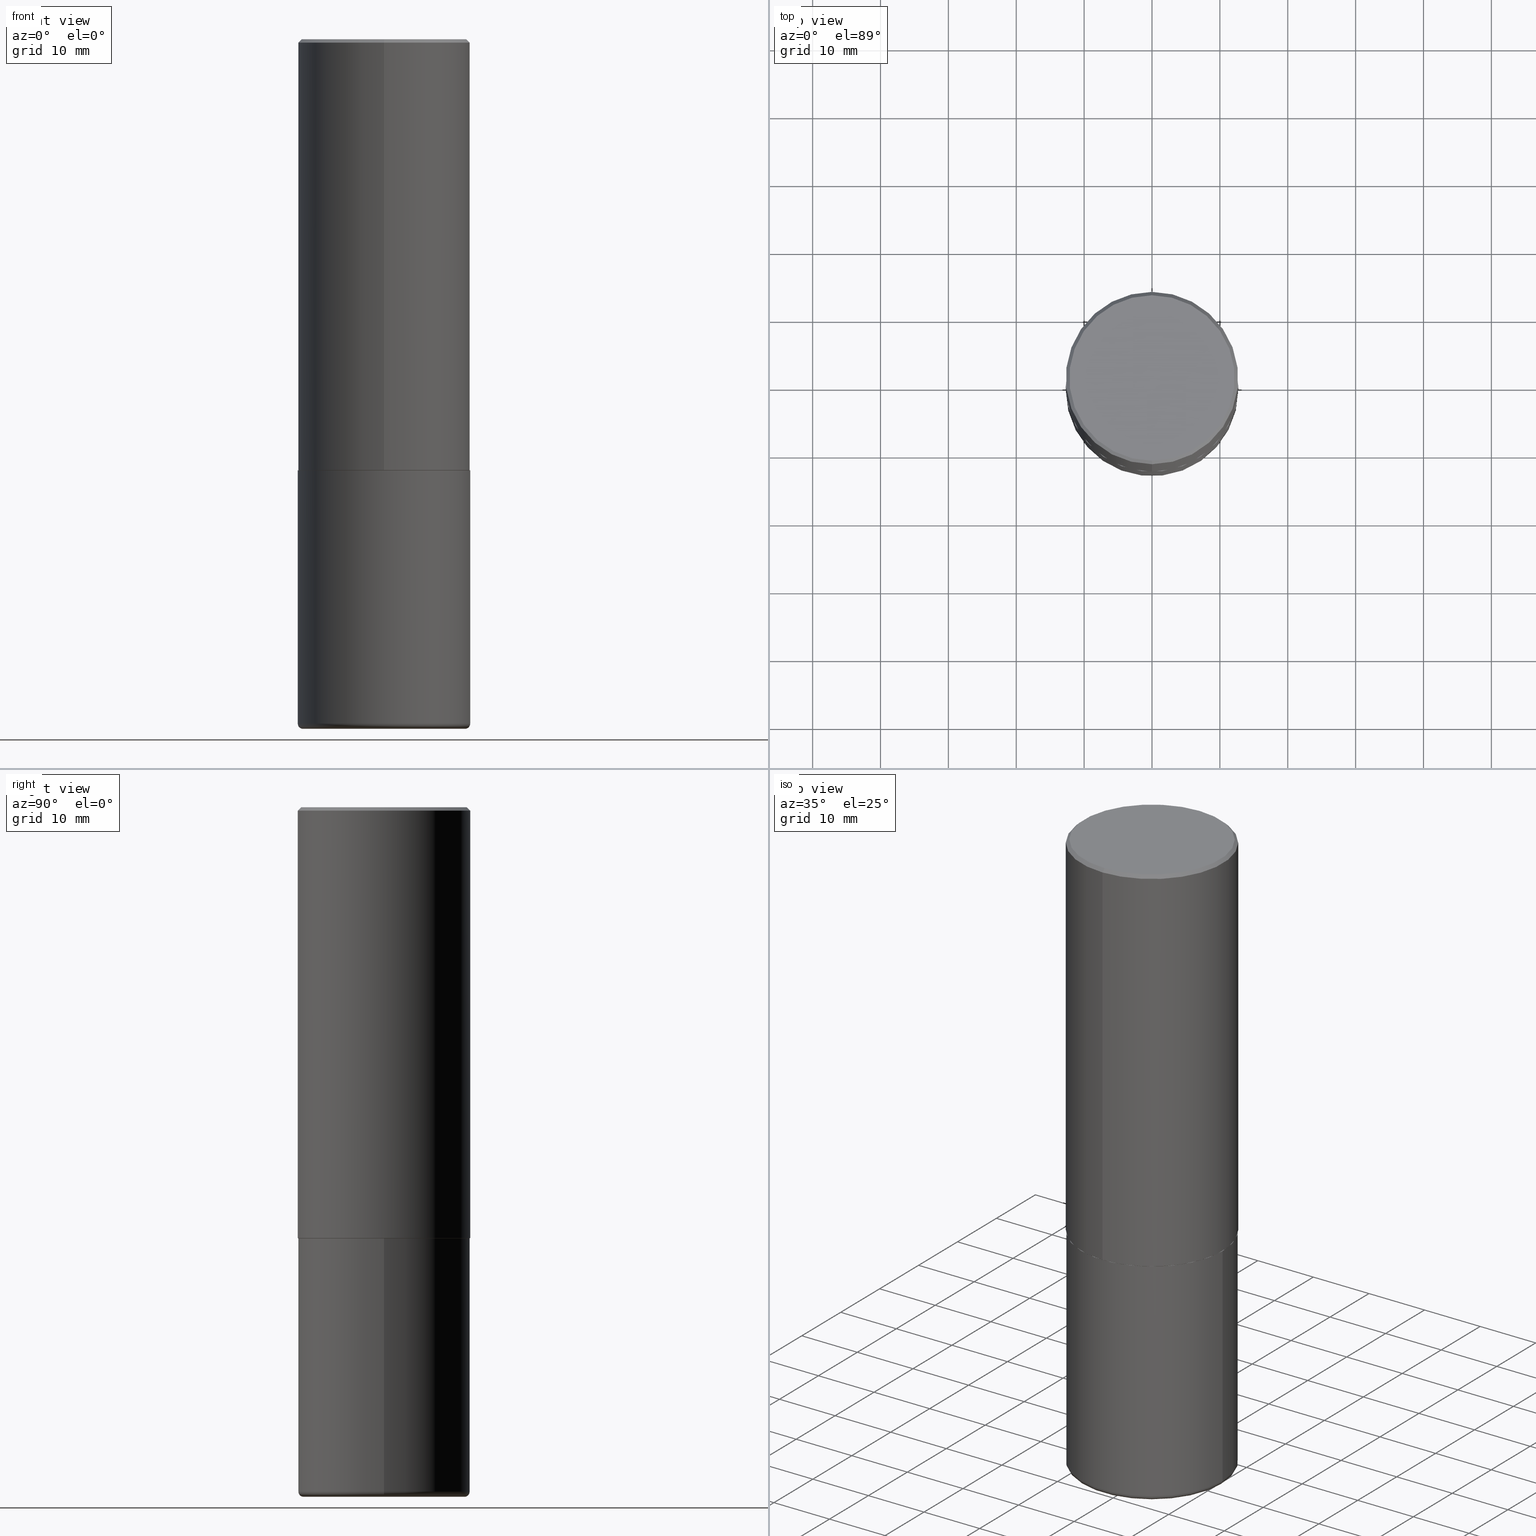
[diagram: canonical four-view strip — front | top / right | iso, engineering-drawing reading convention]
A machine part, canonical four-view strip (front | top / right | iso — engineering-drawing reading convention). The complete STEP part file that produces these views, byte-faithful:
ISO-10303-21;
HEADER;
FILE_DESCRIPTION (( 'STEP AP203' ),
    '1' );
FILE_NAME ('37215.STEP',
    '2024-03-01T22:04:08',
    ( '' ),
    ( '' ),
    'SwSTEP 2.0',
    'SolidWorks 2023',
    '' );
FILE_SCHEMA (( 'CONFIG_CONTROL_DESIGN' ));
ENDSEC;

DATA;
#1 = AXIS2_PLACEMENT_3D ( 'NONE', #158, #293, #219 ) ;
#2 =( NAMED_UNIT ( * ) PLANE_ANGLE_UNIT ( ) SI_UNIT ( $, .RADIAN. ) );
#3 = APPROVAL_PERSON_ORGANIZATION ( #398, #332, #103 ) ;
#4 = LOCAL_TIME ( 17, 4, 8.000000000000000000, #164 ) ;
#5 = CARTESIAN_POINT ( 'NONE',  ( 6.113672015462842613E-29, -8.728703347107864943E-15, -2.500000000000000000 ) ) ;
#6 = APPROVAL_ROLE ( '' ) ;
#7 = PERSON_AND_ORGANIZATION ( #208, #334 ) ;
#8 = APPROVAL_DATE_TIME ( #301, #76 ) ;
#9 = EDGE_CURVE ( 'NONE', #100, #22, #203, .T. ) ;
#10 = CALENDAR_DATE ( 2024, 1, 3 ) ;
#11 = ORIENTED_EDGE ( 'NONE', *, *, #382, .F. ) ;
#12 = CARTESIAN_POINT ( 'NONE',  ( 6.113672015462842613E-29, -8.728703347107864943E-15, -2.500000000000000000 ) ) ;
#13 = ORIENTED_EDGE ( 'NONE', *, *, #410, .T. ) ;
#14 = ORIENTED_EDGE ( 'NONE', *, *, #18, .F. ) ;
#15 = DIRECTION ( 'NONE',  ( 1.000000000000000000, -6.982962677686267499E-15, 4.883557194083114022E-29 ) ) ;
#16 = ORIENTED_EDGE ( 'NONE', *, *, #94, .T. ) ;
#17 = DIRECTION ( 'NONE',  ( -2.445468806185136877E-29, 3.491481338843145188E-15, 1.000000000000000000 ) ) ;
#18 = EDGE_CURVE ( 'NONE', #84, #368, #91, .T. ) ;
#19 = TOROIDAL_SURFACE ( 'NONE', #92, 0.4699999999999999734, 0.02999999999999995379 ) ;
#20 = CARTESIAN_POINT ( 'NONE',  ( 3.552713678800533273E-15, 0.4999999999999916178, -2.499000000000001886 ) ) ;
#21 = FACE_OUTER_BOUND ( 'NONE', #300, .T. ) ;
#22 = VERTEX_POINT ( 'NONE', #95 ) ;
#23 = APPLICATION_CONTEXT ( 'configuration controlled 3d designs of mechanical parts and assemblies' ) ;
#24 = AXIS2_PLACEMENT_3D ( 'NONE', #224, #352, #119 ) ;
#25 = CIRCLE ( 'NONE', #191, 0.5000000000000000000 ) ;
#26 = CARTESIAN_POINT ( 'NONE',  ( 3.491481338843133355E-15, 0.4999999999999999445, -0.02000000000000185310 ) ) ;
#27 = EDGE_CURVE ( 'NONE', #160, #174, #327, .T. ) ;
#28 = DIRECTION ( 'NONE',  ( -2.445468806185136597E-29, 3.491481338843145583E-15, 1.000000000000000000 ) ) ;
#29 = DIRECTION ( 'NONE',  ( -2.444946167972934928E-29, 3.492229786509738161E-15, 1.000000000000000000 ) ) ;
#30 = AXIS2_PLACEMENT_3D ( 'NONE', #5, #326, #129 ) ;
#31 = CIRCLE ( 'NONE', #266, 0.4999999999999999445 ) ;
#32 = EDGE_CURVE ( 'NONE', #368, #84, #220, .T. ) ;
#33 = APPROVAL_STATUS ( 'not_yet_approved' ) ;
#34 = ORIENTED_EDGE ( 'NONE', *, *, #305, .F. ) ;
#35 = ORIENTED_EDGE ( 'NONE', *, *, #324, .T. ) ;
#36 = APPROVAL_STATUS ( 'not_yet_approved' ) ;
#37 = AXIS2_PLACEMENT_3D ( 'NONE', #58, #83, #201 ) ;
#38 = ADVANCED_FACE ( 'NONE', ( #387 ), #260, .F. ) ;
#39 = CIRCLE ( 'NONE', #379, 0.02999999999999995379 ) ;
#40 = ORIENTED_EDGE ( 'NONE', *, *, #123, .T. ) ;
#41 = DATE_AND_TIME ( #102, #4 ) ;
#42 = ADVANCED_FACE ( 'NONE', ( #385 ), #64, .T. ) ;
#43 = MANIFOLD_SOLID_BREP ( 'Body-Move/Copy2[2]', #154 ) ;
#44 = EDGE_LOOP ( 'NONE', ( #241, #303, #132, #284 ) ) ;
#45 = ADVANCED_FACE ( 'NONE', ( #65 ), #347, .F. ) ;
#46 = CARTESIAN_POINT ( 'NONE',  ( -3.484498376165385415E-15, -0.4990000000000087144, -2.499999999999998668 ) ) ;
#47 = CLOSED_SHELL ( 'NONE', ( #152, #227, #45, #42, #322, #396 ) ) ;
#48 = CONICAL_SURFACE ( 'NONE', #285, 0.5000000000000000000, 0.7853981633974449483 ) ;
#49 = CC_DESIGN_PERSON_AND_ORGANIZATION_ASSIGNMENT ( #296, #133, ( #185 ) ) ;
#50 = FACE_OUTER_BOUND ( 'NONE', #110, .T. ) ;
#51 = VERTEX_POINT ( 'NONE', #317 ) ;
#52 = MANIFOLD_SOLID_BREP ( 'Body-Move/Copy2[1]', #47 ) ;
#53 = DIRECTION ( 'NONE',  ( 6.982962677686265922E-15, 1.000000000000000000, -3.491643216902136408E-15 ) ) ;
#54 = EDGE_CURVE ( 'NONE', #366, #406, #304, .T. ) ;
#55 = ORIENTED_EDGE ( 'NONE', *, *, #256, .T. ) ;
#56 = LINE ( 'NONE', #140, #262 ) ;
#57 = VERTEX_POINT ( 'NONE', #381 ) ;
#58 = CARTESIAN_POINT ( 'NONE',  ( 0.000000000000000000, 0.000000000000000000, 0.000000000000000000 ) ) ;
#59 = ORIENTED_EDGE ( 'NONE', *, *, #305, .T. ) ;
#60 = EDGE_CURVE ( 'NONE', #169, #160, #215, .T. ) ;
#61 = LOCAL_TIME ( 17, 4, 8.000000000000000000, #68 ) ;
#62 = CC_DESIGN_DATE_AND_TIME_ASSIGNMENT ( #329, #190, ( #177 ) ) ;
#63 = FACE_OUTER_BOUND ( 'NONE', #370, .T. ) ;
#64 = CYLINDRICAL_SURFACE ( 'NONE', #261, 0.5000000000000000000 ) ;
#65 = FACE_OUTER_BOUND ( 'NONE', #147, .T. ) ;
#66 = APPLICATION_PROTOCOL_DEFINITION ( 'international standard', 'config_control_design', 1994, #23 ) ;
#67 = VECTOR ( 'NONE', #309, 39.37007874015748143 ) ;
#68 = COORDINATED_UNIVERSAL_TIME_OFFSET ( 5, 0, .BEHIND. ) ;
#69 = CARTESIAN_POINT ( 'NONE',  ( -0.5000000000000000000, -7.742228452357075234E-15, -2.500000000000000000 ) ) ;
#70 = ORIENTED_EDGE ( 'NONE', *, *, #281, .T. ) ;
#71 = COORDINATED_UNIVERSAL_TIME_OFFSET ( 5, 0, .BEHIND. ) ;
#72 = AXIS2_PLACEMENT_3D ( 'NONE', #111, #409, #369 ) ;
#73 = ORIENTED_EDGE ( 'NONE', *, *, #354, .F. ) ;
#74 = CYLINDRICAL_SURFACE ( 'NONE', #37, 0.5000000000000001110 ) ;
#75 = ORIENTED_EDGE ( 'NONE', *, *, #60, .F. ) ;
#76 = APPROVAL ( #36, 'UNSPECIFIED' ) ;
#77 = CARTESIAN_POINT ( 'NONE',  ( 0.5000000000000000000, -3.491481338843133355E-15, 2.438088387897967896E-29 ) ) ;
#78 = VECTOR ( 'NONE', #255, 39.37007874015748143 ) ;
#79 = AXIS2_PLACEMENT_3D ( 'NONE', #182, #350, #414 ) ;
#80 = DIRECTION ( 'NONE',  ( -2.445468806185136597E-29, 3.491481338843145583E-15, 1.000000000000000000 ) ) ;
#81 = CARTESIAN_POINT ( 'NONE',  ( 4.889892335945895815E-31, -6.984459573019513448E-17, -0.02000000000000010797 ) ) ;
#82 = CC_DESIGN_DATE_AND_TIME_ASSIGNMENT ( #41, #231, ( #135 ) ) ;
#83 = DIRECTION ( 'NONE',  ( -2.444946167972934928E-29, 3.492229786509738161E-15, 1.000000000000000000 ) ) ;
#84 = VERTEX_POINT ( 'NONE', #153 ) ;
#85 = DIRECTION ( 'NONE',  ( 1.000000000000000000, -6.982962677686269077E-15, 0.000000000000000000 ) ) ;
#86 = ORIENTED_EDGE ( 'NONE', *, *, #382, .T. ) ;
#87 = LOCAL_TIME ( 17, 4, 8.000000000000000000, #192 ) ;
#88 = DIRECTION ( 'NONE',  ( 1.000000000000000000, -6.982962677686267499E-15, 4.883557194083114022E-29 ) ) ;
#89 = LINE ( 'NONE', #349, #139 ) ;
#90 = DIRECTION ( 'NONE',  ( -1.000000000000000000, 7.105427357601001859E-15, 0.000000000000000000 ) ) ;
#91 = CIRCLE ( 'NONE', #407, 0.5000000000000000000 ) ;
#92 = AXIS2_PLACEMENT_3D ( 'NONE', #216, #383, #88 ) ;
#93 = CARTESIAN_POINT ( 'NONE',  ( 6.109920473764365540E-29, -8.727082236487837614E-15, -2.499000000000000110 ) ) ;
#94 = EDGE_CURVE ( 'NONE', #160, #84, #415, .T. ) ;
#95 = CARTESIAN_POINT ( 'NONE',  ( -3.361644018908049661E-15, -0.4799999999999998157, 1.902860714379959855E-15 ) ) ;
#96 = DIRECTION ( 'NONE',  ( 7.105427357601001859E-15, 1.000000000000000000, -3.491481338843145583E-15 ) ) ;
#97 = DIRECTION ( 'NONE',  ( -6.982962677686266711E-15, -1.000000000000000000, 3.491481338843145583E-15 ) ) ;
#98 = COORDINATED_UNIVERSAL_TIME_OFFSET ( 5, 0, .BEHIND. ) ;
#99 =( GEOMETRIC_REPRESENTATION_CONTEXT ( 3 ) GLOBAL_UNCERTAINTY_ASSIGNED_CONTEXT ( ( #146 ) ) GLOBAL_UNIT_ASSIGNED_CONTEXT ( ( #259, #2, #316 ) ) REPRESENTATION_CONTEXT ( 'NONE', 'WORKASPACE' ) );
#100 = VERTEX_POINT ( 'NONE', #384 ) ;
#101 = ORIENTED_EDGE ( 'NONE', *, *, #114, .T. ) ;
#102 = CALENDAR_DATE ( 2024, 1, 3 ) ;
#103 = APPROVAL_ROLE ( '' ) ;
#104 = AXIS2_PLACEMENT_3D ( 'NONE', #93, #412, #124 ) ;
#105 = ORIENTED_EDGE ( 'NONE', *, *, #256, .F. ) ;
#106 = DIRECTION ( 'NONE',  ( -2.445468806185136597E-29, 3.491481338843145583E-15, 1.000000000000000000 ) ) ;
#107 = EDGE_CURVE ( 'NONE', #250, #108, #89, .T. ) ;
#108 = VERTEX_POINT ( 'NONE', #69 ) ;
#109 = DIRECTION ( 'NONE',  ( 1.000000000000000000, -6.982962677686267499E-15, 0.000000000000000000 ) ) ;
#110 = EDGE_LOOP ( 'NONE', ( #59, #35, #11, #230 ) ) ;
#111 = CARTESIAN_POINT ( 'NONE',  ( 6.112365419932337880E-29, -8.730574466274345798E-15, -2.500000000000000000 ) ) ;
#112 = EDGE_LOOP ( 'NONE', ( #232, #307 ) ) ;
#113 = CC_DESIGN_APPROVAL ( #299, ( #135 ) ) ;
#114 = EDGE_CURVE ( 'NONE', #169, #57, #371, .T. ) ;
#115 = DIRECTION ( 'NONE',  ( -2.444946167972934928E-29, 3.492229786509738161E-15, 1.000000000000000000 ) ) ;
#116 = ORIENTED_EDGE ( 'NONE', *, *, #27, .F. ) ;
#117 = CARTESIAN_POINT ( 'NONE',  ( 4.889892335945895815E-31, -6.984459573019513448E-17, -0.02000000000000010797 ) ) ;
#118 = CYLINDRICAL_SURFACE ( 'NONE', #279, 0.5000000000000001110 ) ;
#119 = DIRECTION ( 'NONE',  ( -6.982962677686265922E-15, -1.000000000000000000, 3.491643216902136408E-15 ) ) ;
#120 = AXIS2_PLACEMENT_3D ( 'NONE', #348, #188, #283 ) ;
#121 = DIRECTION ( 'NONE',  ( 1.000000000000000000, -6.982962677686267499E-15, 0.000000000000000000 ) ) ;
#122 = CARTESIAN_POINT ( 'NONE',  ( -3.491481338843133750E-15, -0.5000000000000001110, 1.746114893254869475E-15 ) ) ;
#123 = EDGE_CURVE ( 'NONE', #174, #368, #204, .T. ) ;
#124 = DIRECTION ( 'NONE',  ( -6.982962677686266711E-15, -1.000000000000000000, 3.278217592397114284E-15 ) ) ;
#125 = ADVANCED_FACE ( 'NONE', ( #376 ), #74, .T. ) ;
#126 = DIRECTION ( 'NONE',  ( -6.982962677686265922E-15, -1.000000000000000000, 3.284787166730577015E-15 ) ) ;
#127 = VECTOR ( 'NONE', #184, 39.37007874015748143 ) ;
#128 = AXIS2_PLACEMENT_3D ( 'NONE', #240, #401, #109 ) ;
#129 = DIRECTION ( 'NONE',  ( -1.000000000000000000, 6.982962677686265922E-15, -4.876176775795935793E-29 ) ) ;
#130 = APPROVAL_STATUS ( 'not_yet_approved' ) ;
#131 = SHAPE_DEFINITION_REPRESENTATION ( #356, #375 ) ;
#132 = ORIENTED_EDGE ( 'NONE', *, *, #54, .T. ) ;
#133 = PERSON_AND_ORGANIZATION_ROLE ( 'creator' ) ;
#134 = AXIS2_PLACEMENT_3D ( 'NONE', #12, #145, #85 ) ;
#135 = PRODUCT_DEFINITION ( 'UNKNOWN', '', #185, #247 ) ;
#136 = ORIENTED_EDGE ( 'NONE', *, *, #270, .T. ) ;
#137 = CALENDAR_DATE ( 2024, 1, 3 ) ;
#138 = CARTESIAN_POINT ( 'NONE',  ( 0.000000000000000000, 0.000000000000000000, 0.000000000000000000 ) ) ;
#139 = VECTOR ( 'NONE', #320, 39.37007874015748143 ) ;
#140 = CARTESIAN_POINT ( 'NONE',  ( 3.545608251442960663E-15, 0.4989999999999912283, -2.500000000000001776 ) ) ;
#141 = DIRECTION ( 'NONE',  ( -6.982962677686265922E-15, -1.000000000000000000, 3.492229786509738161E-15 ) ) ;
#142 = ORIENTED_EDGE ( 'NONE', *, *, #246, .F. ) ;
#143 = DIRECTION ( 'NONE',  ( 5.024295867789263036E-15, 0.7071067811867189912, 0.7071067811863760433 ) ) ;
#144 = ORIENTED_EDGE ( 'NONE', *, *, #32, .F. ) ;
#145 = DIRECTION ( 'NONE',  ( -2.445468806185136597E-29, 3.491481338843145583E-15, 1.000000000000000000 ) ) ;
#146 = UNCERTAINTY_MEASURE_WITH_UNIT (LENGTH_MEASURE( 1.000000000000000082E-05 ), #259, 'distance_accuracy_value', 'NONE');
#147 = EDGE_LOOP ( 'NONE', ( #193, #362 ) ) ;
#148 = CIRCLE ( 'NONE', #72, 0.4989999999999999991 ) ;
#149 = FACE_OUTER_BOUND ( 'NONE', #151, .T. ) ;
#150 = PLANE ( 'NONE',  #120 ) ;
#151 = EDGE_LOOP ( 'NONE', ( #86, #178, #245, #105 ) ) ;
#152 = ADVANCED_FACE ( 'NONE', ( #149 ), #337, .T. ) ;
#153 = CARTESIAN_POINT ( 'NONE',  ( -3.430248998885764992E-15, -0.5000000000000001110, -0.01999999999999835937 ) ) ;
#154 = CLOSED_SHELL ( 'NONE', ( #268, #389, #363, #288, #125, #399, #386, #38 ) ) ;
#155 = CARTESIAN_POINT ( 'NONE',  ( 0.4699999999999999734, -1.724791781388512737E-14, -4.000000000000000000 ) ) ;
#156 = PLANE ( 'NONE',  #79 ) ;
#157 = DIRECTION ( 'NONE',  ( 2.444946167972934647E-29, -3.492229786509738161E-15, -1.000000000000000000 ) ) ;
#158 = CARTESIAN_POINT ( 'NONE',  ( 6.109920473764365540E-29, -8.727082236487837614E-15, -2.499000000000000110 ) ) ;
#159 = APPROVAL_PERSON_ORGANIZATION ( #269, #76, #6 ) ;
#160 = VERTEX_POINT ( 'NONE', #282 ) ;
#161 = PERSON_AND_ORGANIZATION_ROLE ( 'design_owner' ) ;
#162 = CIRCLE ( 'NONE', #221, 0.4999999999999999445 ) ;
#163 = ORIENTED_EDGE ( 'NONE', *, *, #114, .F. ) ;
#164 = COORDINATED_UNIVERSAL_TIME_OFFSET ( 5, 0, .BEHIND. ) ;
#165 = EDGE_LOOP ( 'NONE', ( #237, #239, #315, #213 ) ) ;
#166 = CIRCLE ( 'NONE', #212, 0.4799999999999998157 ) ;
#167 = CARTESIAN_POINT ( 'NONE',  ( 0.000000000000000000, 0.000000000000000000, 0.000000000000000000 ) ) ;
#168 = CONICAL_SURFACE ( 'NONE', #361, 0.4989999999999999991, 0.7853981633976873100 ) ;
#169 = VERTEX_POINT ( 'NONE', #46 ) ;
#170 = EDGE_CURVE ( 'NONE', #100, #368, #275, .T. ) ;
#171 = FACE_OUTER_BOUND ( 'NONE', #165, .T. ) ;
#172 = EDGE_LOOP ( 'NONE', ( #265, #40, #14, #202 ) ) ;
#173 = LINE ( 'NONE', #77, #298 ) ;
#174 = VERTEX_POINT ( 'NONE', #20 ) ;
#175 = DIRECTION ( 'NONE',  ( 2.444946167972934928E-29, -3.492229786509738161E-15, -1.000000000000000000 ) ) ;
#176 = AXIS2_PLACEMENT_3D ( 'NONE', #167, #106, #306 ) ;
#177 = SECURITY_CLASSIFICATION ( '', '', #267 ) ;
#178 = ORIENTED_EDGE ( 'NONE', *, *, #107, .T. ) ;
#179 = CONICAL_SURFACE ( 'NONE', #291, 0.4989999999999999991, 0.7853981633976873100 ) ;
#180 = LINE ( 'NONE', #314, #413 ) ;
#181 = VERTEX_POINT ( 'NONE', #209 ) ;
#182 = CARTESIAN_POINT ( 'NONE',  ( 9.781875224740546387E-29, -1.396592535537258233E-14, -4.000000000000000000 ) ) ;
#183 = CARTESIAN_POINT ( 'NONE',  ( -3.484498376165385415E-15, -0.4990000000000087144, -2.499999999999998668 ) ) ;
#184 = DIRECTION ( 'NONE',  ( -4.937700262165728178E-15, -0.7071067811867141062, 0.7071067811863809283 ) ) ;
#185 = PRODUCT_DEFINITION_FORMATION_WITH_SPECIFIED_SOURCE ( 'ANY', '', #276, .NOT_KNOWN. ) ;
#186 = FACE_OUTER_BOUND ( 'NONE', #172, .T. ) ;
#187 = CARTESIAN_POINT ( 'NONE',  ( 0.000000000000000000, 0.000000000000000000, 0.000000000000000000 ) ) ;
#188 = DIRECTION ( 'NONE',  ( -2.444946167972934647E-29, 3.492229786509738161E-15, 1.000000000000000000 ) ) ;
#189 = CC_DESIGN_PERSON_AND_ORGANIZATION_ASSIGNMENT ( #233, #364, ( #135 ) ) ;
#190 = DATE_TIME_ROLE ( 'classification_date' ) ;
#191 = AXIS2_PLACEMENT_3D ( 'NONE', #323, #28, #353 ) ;
#192 = COORDINATED_UNIVERSAL_TIME_OFFSET ( 5, 0, .BEHIND. ) ;
#193 = ORIENTED_EDGE ( 'NONE', *, *, #372, .T. ) ;
#194 = PERSON_AND_ORGANIZATION ( #208, #334 ) ;
#195 = APPLICATION_CONTEXT ( 'configuration controlled 3d designs of mechanical parts and assemblies' ) ;
#196 = ORIENTED_EDGE ( 'NONE', *, *, #217, .F. ) ;
#197 = AXIS2_PLACEMENT_3D ( 'NONE', #374, #340, #313 ) ;
#198 = PERSON_AND_ORGANIZATION_ROLE ( 'classification_officer' ) ;
#199 = CIRCLE ( 'NONE', #134, 0.5000000000000000000 ) ;
#200 = CARTESIAN_POINT ( 'NONE',  ( 6.112365419932337880E-29, -8.730574466274345798E-15, -2.500000000000000000 ) ) ;
#201 = DIRECTION ( 'NONE',  ( -6.982962677686265922E-15, -1.000000000000000000, 3.492229786509738161E-15 ) ) ;
#202 = ORIENTED_EDGE ( 'NONE', *, *, #94, .F. ) ;
#203 = CIRCLE ( 'NONE', #197, 0.4799999999999998157 ) ;
#204 = LINE ( 'NONE', #367, #365 ) ;
#205 = CONICAL_SURFACE ( 'NONE', #408, 0.5000000000000000000, 0.7853981633974449483 ) ;
#206 = DIRECTION ( 'NONE',  ( 1.000000000000000000, -6.982962677686267499E-15, 0.000000000000000000 ) ) ;
#207 = ORIENTED_EDGE ( 'NONE', *, *, #107, .F. ) ;
#208 = PERSON ( 'UNSPECIFIED', 'UNSPECIFIED', 'UNSPECIFIED', ('UNSPECIFIED'), ('UNSPECIFIED'), ('UNSPECIFIED') ) ;
#209 = CARTESIAN_POINT ( 'NONE',  ( 0.5000000000000000000, -1.222018468595099830E-14, -2.500000000000000000 ) ) ;
#210 = DIRECTION ( 'NONE',  ( -6.982962677686265922E-15, -1.000000000000000000, 3.284787166730577015E-15 ) ) ;
#211 = AXIS2_PLACEMENT_3D ( 'NONE', #226, #157, #290 ) ;
#212 = AXIS2_PLACEMENT_3D ( 'NONE', #302, #249, #141 ) ;
#213 = ORIENTED_EDGE ( 'NONE', *, *, #32, .T. ) ;
#214 = DIRECTION ( 'NONE',  ( -6.982962677686265922E-15, -1.000000000000000000, 3.492229786509738161E-15 ) ) ;
#215 = LINE ( 'NONE', #183, #127 ) ;
#216 = CARTESIAN_POINT ( 'NONE',  ( 9.708511160554992872E-29, -1.386118091520728738E-14, -3.970000000000000195 ) ) ;
#217 = EDGE_CURVE ( 'NONE', #51, #366, #311, .T. ) ;
#218 = FACE_OUTER_BOUND ( 'NONE', #404, .T. ) ;
#219 = DIRECTION ( 'NONE',  ( -6.982962677686266711E-15, -1.000000000000000000, 3.278217592397114284E-15 ) ) ;
#220 = CIRCLE ( 'NONE', #24, 0.5000000000000000000 ) ;
#221 = AXIS2_PLACEMENT_3D ( 'NONE', #339, #308, #373 ) ;
#222 = CC_DESIGN_PERSON_AND_ORGANIZATION_ASSIGNMENT ( #394, #198, ( #177 ) ) ;
#223 = FACE_OUTER_BOUND ( 'NONE', #248, .T. ) ;
#224 = CARTESIAN_POINT ( 'NONE',  ( 4.889892335945895815E-31, -6.984459573019513448E-17, -0.02000000000000010797 ) ) ;
#225 = APPLICATION_PROTOCOL_DEFINITION ( 'international standard', 'config_control_design', 1994, #195 ) ;
#226 = CARTESIAN_POINT ( 'NONE',  ( 3.351822085289406364E-15, 0.4799999999999998157, -1.562975089097030468E-15 ) ) ;
#227 = ADVANCED_FACE ( 'NONE', ( #50 ), #234, .T. ) ;
#228 = LOCAL_TIME ( 17, 4, 8.000000000000000000, #98 ) ;
#229 = DATE_AND_TIME ( #390, #228 ) ;
#230 = ORIENTED_EDGE ( 'NONE', *, *, #54, .F. ) ;
#231 = DATE_TIME_ROLE ( 'creation_date' ) ;
#232 = ORIENTED_EDGE ( 'NONE', *, *, #9, .T. ) ;
#233 = PERSON_AND_ORGANIZATION ( #208, #334 ) ;
#234 = TOROIDAL_SURFACE ( 'NONE', #360, 0.4699999999999999734, 0.02999999999999995379 ) ;
#235 = CC_DESIGN_SECURITY_CLASSIFICATION ( #177, ( #185 ) ) ;
#236 = DIRECTION ( 'NONE',  ( 1.000000000000000000, 0.000000000000000000, 0.000000000000000000 ) ) ;
#237 = ORIENTED_EDGE ( 'NONE', *, *, #410, .F. ) ;
#238 = CARTESIAN_POINT ( 'NONE',  ( 3.491481338843133355E-15, 0.4999999999999999445, -0.02000000000000185310 ) ) ;
#239 = ORIENTED_EDGE ( 'NONE', *, *, #9, .F. ) ;
#240 = CARTESIAN_POINT ( 'NONE',  ( 9.781875224740546387E-29, -1.396592535537258233E-14, -4.000000000000000000 ) ) ;
#241 = ORIENTED_EDGE ( 'NONE', *, *, #324, .F. ) ;
#242 = CC_DESIGN_PERSON_AND_ORGANIZATION_ASSIGNMENT ( #194, #161, ( #276 ) ) ;
#243 = DIRECTION ( 'NONE',  ( -6.982962677686265922E-15, -1.000000000000000000, 3.284787166730577015E-15 ) ) ;
#244 = CIRCLE ( 'NONE', #338, 0.4699999999999999734 ) ;
#245 = ORIENTED_EDGE ( 'NONE', *, *, #372, .F. ) ;
#246 = EDGE_CURVE ( 'NONE', #22, #100, #166, .T. ) ;
#247 = DESIGN_CONTEXT ( 'detailed design', #23, 'design' ) ;
#248 = EDGE_LOOP ( 'NONE', ( #142, #13, #395, #343 ) ) ;
#249 = DIRECTION ( 'NONE',  ( -2.444946167972934928E-29, 3.492229786509738161E-15, 1.000000000000000000 ) ) ;
#250 = VERTEX_POINT ( 'NONE', #274 ) ;
#251 = DIRECTION ( 'NONE',  ( -4.851104656540947709E-15, -0.7071067811865475727, -0.7071067811865474617 ) ) ;
#252 = AXIS2_PLACEMENT_3D ( 'NONE', #200, #359, #210 ) ;
#253 = DIRECTION ( 'NONE',  ( 1.000000000000000000, -6.982962677686279332E-15, 0.000000000000000000 ) ) ;
#254 = DIRECTION ( 'NONE',  ( -2.444946167972934928E-29, 3.492229786509738161E-15, 1.000000000000000000 ) ) ;
#255 = DIRECTION ( 'NONE',  ( -2.444946167972934928E-29, 3.492229786509738161E-15, 1.000000000000000000 ) ) ;
#256 = EDGE_CURVE ( 'NONE', #406, #181, #173, .T. ) ;
#257 =( LENGTH_UNIT ( ) NAMED_UNIT ( * ) SI_UNIT ( $, .METRE. ) );
#258 = DIRECTION ( 'NONE',  ( -2.444946167972934928E-29, 3.492229786509738161E-15, 1.000000000000000000 ) ) ;
#259 =( CONVERSION_BASED_UNIT ( 'INCH', #319 ) LENGTH_UNIT ( ) NAMED_UNIT ( #341 ) );
#260 = PLANE ( 'NONE',  #211 ) ;
#261 = AXIS2_PLACEMENT_3D ( 'NONE', #187, #287, #355 ) ;
#262 = VECTOR ( 'NONE', #143, 39.37007874015748143 ) ;
#263 = CARTESIAN_POINT ( 'NONE',  ( 0.4699999999999999734, -1.714317337371983400E-14, -3.970000000000000195 ) ) ;
#264 = CALENDAR_DATE ( 2024, 1, 3 ) ;
#265 = ORIENTED_EDGE ( 'NONE', *, *, #27, .T. ) ;
#266 = AXIS2_PLACEMENT_3D ( 'NONE', #357, #416, #121 ) ;
#267 = SECURITY_CLASSIFICATION_LEVEL ( 'unclassified' ) ;
#268 = ADVANCED_FACE ( 'NONE', ( #405 ), #168, .T. ) ;
#269 = PERSON_AND_ORGANIZATION ( #208, #334 ) ;
#270 = EDGE_CURVE ( 'NONE', #57, #174, #56, .T. ) ;
#271 = DIRECTION ( 'NONE',  ( 0.000000000000000000, 0.000000000000000000, 1.000000000000000000 ) ) ;
#272 = CC_DESIGN_APPROVAL ( #76, ( #185 ) ) ;
#273 = CARTESIAN_POINT ( 'NONE',  ( -0.4699999999999999734, -1.052163005713481828E-14, -3.970000000000000195 ) ) ;
#274 = CARTESIAN_POINT ( 'NONE',  ( -0.4999999999999999445, -1.030846723640678645E-14, -3.970000000000000195 ) ) ;
#275 = LINE ( 'NONE', #238, #67 ) ;
#276 = PRODUCT ( '37215', '37215', '', ( #358 ) ) ;
#277 = EDGE_LOOP ( 'NONE', ( #101, #136, #116, #75 ) ) ;
#278 = FACE_OUTER_BOUND ( 'NONE', #44, .T. ) ;
#279 = AXIS2_PLACEMENT_3D ( 'NONE', #286, #29, #214 ) ;
#280 = ORIENTED_EDGE ( 'NONE', *, *, #281, .F. ) ;
#281 = EDGE_CURVE ( 'NONE', #57, #169, #148, .T. ) ;
#282 = CARTESIAN_POINT ( 'NONE',  ( -3.491481338843073796E-15, -0.5000000000000089928, -2.498999999999998778 ) ) ;
#283 = DIRECTION ( 'NONE',  ( -6.982962677686265922E-15, -1.000000000000000000, 3.492229786509738161E-15 ) ) ;
#284 = ORIENTED_EDGE ( 'NONE', *, *, #297, .F. ) ;
#285 = AXIS2_PLACEMENT_3D ( 'NONE', #117, #175, #53 ) ;
#286 = CARTESIAN_POINT ( 'NONE',  ( 0.000000000000000000, 0.000000000000000000, 0.000000000000000000 ) ) ;
#287 = DIRECTION ( 'NONE',  ( -2.445468806185136597E-29, 3.491481338843145583E-15, 1.000000000000000000 ) ) ;
#288 = ADVANCED_FACE ( 'NONE', ( #171 ), #48, .T. ) ;
#289 = DIRECTION ( 'NONE',  ( 6.982962677686265922E-15, 1.000000000000000000, -3.491643216902136408E-15 ) ) ;
#290 = DIRECTION ( 'NONE',  ( 6.982962677686265922E-15, 1.000000000000000000, -3.492229786509738161E-15 ) ) ;
#291 = AXIS2_PLACEMENT_3D ( 'NONE', #417, #254, #126 ) ;
#292 = DATE_AND_TIME ( #137, #61 ) ;
#293 = DIRECTION ( 'NONE',  ( -2.444946167972934928E-29, 3.492229786509738161E-15, 1.000000000000000000 ) ) ;
#294 = PERSON_AND_ORGANIZATION ( #208, #334 ) ;
#295 = ORIENTED_EDGE ( 'NONE', *, *, #270, .F. ) ;
#296 = PERSON_AND_ORGANIZATION ( #208, #334 ) ;
#297 = EDGE_CURVE ( 'NONE', #250, #406, #162, .T. ) ;
#298 = VECTOR ( 'NONE', #17, 39.37007874015748143 ) ;
#299 = APPROVAL ( #130, 'UNSPECIFIED' ) ;
#300 = EDGE_LOOP ( 'NONE', ( #34, #196 ) ) ;
#301 = DATE_AND_TIME ( #264, #351 ) ;
#302 = CARTESIAN_POINT ( 'NONE',  ( -5.540013713897219376E-45, 7.913058030796886371E-31, 2.265904168552862416E-16 ) ) ;
#303 = ORIENTED_EDGE ( 'NONE', *, *, #217, .T. ) ;
#304 = CIRCLE ( 'NONE', #333, 0.02999999999999995379 ) ;
#305 = EDGE_CURVE ( 'NONE', #366, #51, #244, .T. ) ;
#306 = DIRECTION ( 'NONE',  ( 1.000000000000000000, -6.982962677686266711E-15, 4.876176775795935793E-29 ) ) ;
#307 = ORIENTED_EDGE ( 'NONE', *, *, #246, .T. ) ;
#308 = DIRECTION ( 'NONE',  ( -2.445468806185136597E-29, 3.491481338843145583E-15, 1.000000000000000000 ) ) ;
#309 = DIRECTION ( 'NONE',  ( 4.937700262164530687E-15, 0.7071067811865426878, -0.7071067811865523467 ) ) ;
#310 = EDGE_CURVE ( 'NONE', #108, #181, #199, .T. ) ;
#311 = CIRCLE ( 'NONE', #128, 0.4699999999999999734 ) ;
#312 = CARTESIAN_POINT ( 'NONE',  ( 6.112365419932337880E-29, -8.730574466274345798E-15, -2.500000000000000000 ) ) ;
#313 = DIRECTION ( 'NONE',  ( -6.982962677686265922E-15, -1.000000000000000000, 3.492229786509738161E-15 ) ) ;
#314 = CARTESIAN_POINT ( 'NONE',  ( -3.430248998885764992E-15, -0.5000000000000001110, -0.01999999999999835937 ) ) ;
#315 = ORIENTED_EDGE ( 'NONE', *, *, #170, .T. ) ;
#316 =( NAMED_UNIT ( * ) SI_UNIT ( $, .STERADIAN. ) SOLID_ANGLE_UNIT ( ) );
#317 = CARTESIAN_POINT ( 'NONE',  ( -0.4699999999999999734, -1.046742086685344905E-14, -4.000000000000000000 ) ) ;
#318 = PRODUCT_RELATED_PRODUCT_CATEGORY ( 'detail', '', ( #276 ) ) ;
#319 = LENGTH_MEASURE_WITH_UNIT ( LENGTH_MEASURE( 0.02539999999999999897 ), #257 );
#320 = DIRECTION ( 'NONE',  ( -2.445468806185136877E-29, 3.491481338843145188E-15, 1.000000000000000000 ) ) ;
#321 = DIRECTION ( 'NONE',  ( 2.444946167972934928E-29, -3.492229786509738161E-15, -1.000000000000000000 ) ) ;
#322 = ADVANCED_FACE ( 'NONE', ( #278 ), #19, .T. ) ;
#323 = CARTESIAN_POINT ( 'NONE',  ( 6.113672015462842613E-29, -8.728703347107864943E-15, -2.500000000000000000 ) ) ;
#324 = EDGE_CURVE ( 'NONE', #51, #250, #39, .T. ) ;
#325 = APPROVAL_DATE_TIME ( #229, #332 ) ;
#326 = DIRECTION ( 'NONE',  ( 2.438088387897960049E-29, -3.491481338843145188E-15, -1.000000000000000000 ) ) ;
#327 = CIRCLE ( 'NONE', #1, 0.5000000000000002220 ) ;
#328 = CC_DESIGN_APPROVAL ( #332, ( #177 ) ) ;
#329 = DATE_AND_TIME ( #10, #87 ) ;
#330 = EDGE_LOOP ( 'NONE', ( #402, #336, #16, #144 ) ) ;
#331 = ORIENTED_EDGE ( 'NONE', *, *, #297, .T. ) ;
#332 = APPROVAL ( #33, 'UNSPECIFIED' ) ;
#333 = AXIS2_PLACEMENT_3D ( 'NONE', #263, #97, #253 ) ;
#334 = ORGANIZATION ( 'UNSPECIFIED', 'UNSPECIFIED', '' ) ;
#335 = APPROVAL_DATE_TIME ( #292, #299 ) ;
#336 = ORIENTED_EDGE ( 'NONE', *, *, #354, .T. ) ;
#337 = CYLINDRICAL_SURFACE ( 'NONE', #176, 0.5000000000000000000 ) ;
#338 = AXIS2_PLACEMENT_3D ( 'NONE', #378, #80, #206 ) ;
#339 = CARTESIAN_POINT ( 'NONE',  ( 9.708511160554992872E-29, -1.386118091520728738E-14, -3.970000000000000195 ) ) ;
#340 = DIRECTION ( 'NONE',  ( -2.444946167972934928E-29, 3.492229786509738161E-15, 1.000000000000000000 ) ) ;
#341 = DIMENSIONAL_EXPONENTS ( 1.000000000000000000, 0.000000000000000000, 0.000000000000000000, 0.000000000000000000, 0.000000000000000000, 0.000000000000000000, 0.000000000000000000 ) ;
#342 = CARTESIAN_POINT ( 'NONE',  ( 9.708511160554992872E-29, -1.386118091520728738E-14, -3.970000000000000195 ) ) ;
#343 = ORIENTED_EDGE ( 'NONE', *, *, #170, .F. ) ;
#344 = CIRCLE ( 'NONE', #104, 0.5000000000000002220 ) ;
#345 = ORIENTED_EDGE ( 'NONE', *, *, #60, .T. ) ;
#346 = CARTESIAN_POINT ( 'NONE',  ( 0.4999999999999999445, -1.735266225405042074E-14, -3.970000000000000195 ) ) ;
#347 = PLANE ( 'NONE',  #30 ) ;
#348 = CARTESIAN_POINT ( 'NONE',  ( 6.112365419932337880E-29, -8.730574466274345798E-15, -2.500000000000000000 ) ) ;
#349 = CARTESIAN_POINT ( 'NONE',  ( -0.5000000000000000000, 3.552713678800500929E-15, -2.459467545127452891E-29 ) ) ;
#350 = DIRECTION ( 'NONE',  ( 2.438088387897960049E-29, -3.491481338843145188E-15, -1.000000000000000000 ) ) ;
#351 = LOCAL_TIME ( 17, 4, 8.000000000000000000, #71 ) ;
#352 = DIRECTION ( 'NONE',  ( -2.444946167972934928E-29, 3.492229786509738161E-15, 1.000000000000000000 ) ) ;
#353 = DIRECTION ( 'NONE',  ( 1.000000000000000000, -6.982962677686269077E-15, 0.000000000000000000 ) ) ;
#354 = EDGE_CURVE ( 'NONE', #174, #160, #344, .T. ) ;
#355 = DIRECTION ( 'NONE',  ( 1.000000000000000000, -6.982962677686266711E-15, 4.876176775795935793E-29 ) ) ;
#356 = PRODUCT_DEFINITION_SHAPE ( 'NONE', 'NONE',  #135 ) ;
#357 = CARTESIAN_POINT ( 'NONE',  ( 9.708511160554992872E-29, -1.386118091520728738E-14, -3.970000000000000195 ) ) ;
#358 = MECHANICAL_CONTEXT ( 'NONE', #195, 'mechanical' ) ;
#359 = DIRECTION ( 'NONE',  ( -2.444946167972934928E-29, 3.492229786509738161E-15, 1.000000000000000000 ) ) ;
#360 = AXIS2_PLACEMENT_3D ( 'NONE', #342, #411, #15 ) ;
#361 = AXIS2_PLACEMENT_3D ( 'NONE', #312, #403, #243 ) ;
#362 = ORIENTED_EDGE ( 'NONE', *, *, #310, .T. ) ;
#363 = ADVANCED_FACE ( 'NONE', ( #223 ), #205, .T. ) ;
#364 = PERSON_AND_ORGANIZATION_ROLE ( 'creator' ) ;
#365 = VECTOR ( 'NONE', #115, 39.37007874015748143 ) ;
#366 = VERTEX_POINT ( 'NONE', #155 ) ;
#367 = CARTESIAN_POINT ( 'NONE',  ( 3.552713678800501718E-15, 0.5000000000000001110, -1.746114893254869475E-15 ) ) ;
#368 = VERTEX_POINT ( 'NONE', #26 ) ;
#369 = DIRECTION ( 'NONE',  ( -6.982962677686265922E-15, -1.000000000000000000, 3.284787166730577015E-15 ) ) ;
#370 = EDGE_LOOP ( 'NONE', ( #295, #70, #345, #73 ) ) ;
#371 = CIRCLE ( 'NONE', #252, 0.4989999999999999991 ) ;
#372 = EDGE_CURVE ( 'NONE', #181, #108, #25, .T. ) ;
#373 = DIRECTION ( 'NONE',  ( 1.000000000000000000, -6.982962677686267499E-15, 0.000000000000000000 ) ) ;
#374 = CARTESIAN_POINT ( 'NONE',  ( -5.540013713897219376E-45, 7.913058030796886371E-31, 2.265904168552862416E-16 ) ) ;
#375 = ADVANCED_BREP_SHAPE_REPRESENTATION ( '37215', ( #52, #43, #391 ), #99 ) ;
#376 = FACE_OUTER_BOUND ( 'NONE', #330, .T. ) ;
#377 = ORIENTED_EDGE ( 'NONE', *, *, #310, .F. ) ;
#378 = CARTESIAN_POINT ( 'NONE',  ( 9.781875224740546387E-29, -1.396592535537258233E-14, -4.000000000000000000 ) ) ;
#379 = AXIS2_PLACEMENT_3D ( 'NONE', #273, #96, #90 ) ;
#380 = CARTESIAN_POINT ( 'NONE',  ( 4.889892335945895815E-31, -6.984459573019513448E-17, -0.02000000000000010797 ) ) ;
#381 = CARTESIAN_POINT ( 'NONE',  ( 3.549160965121762351E-15, 0.4989999999999912283, -2.500000000000001776 ) ) ;
#382 = EDGE_CURVE ( 'NONE', #406, #250, #31, .T. ) ;
#383 = DIRECTION ( 'NONE',  ( -2.445468806185136597E-29, 3.491481338843145583E-15, 1.000000000000000000 ) ) ;
#384 = CARTESIAN_POINT ( 'NONE',  ( 3.421651712066270057E-15, 0.4799999999999998157, -1.449679880669387470E-15 ) ) ;
#385 = FACE_OUTER_BOUND ( 'NONE', #393, .T. ) ;
#386 = ADVANCED_FACE ( 'NONE', ( #218 ), #150, .F. ) ;
#387 = FACE_OUTER_BOUND ( 'NONE', #112, .T. ) ;
#388 = PERSON_AND_ORGANIZATION_ROLE ( 'design_supplier' ) ;
#389 = ADVANCED_FACE ( 'NONE', ( #186 ), #118, .T. ) ;
#390 = CALENDAR_DATE ( 2024, 1, 3 ) ;
#391 = AXIS2_PLACEMENT_3D ( 'NONE', #138, #271, #236 ) ;
#392 = CC_DESIGN_PERSON_AND_ORGANIZATION_ASSIGNMENT ( #7, #388, ( #185 ) ) ;
#393 = EDGE_LOOP ( 'NONE', ( #207, #331, #55, #377 ) ) ;
#394 = PERSON_AND_ORGANIZATION ( #208, #334 ) ;
#395 = ORIENTED_EDGE ( 'NONE', *, *, #18, .T. ) ;
#396 = ADVANCED_FACE ( 'NONE', ( #21 ), #156, .T. ) ;
#397 = APPROVAL_ROLE ( '' ) ;
#398 = PERSON_AND_ORGANIZATION ( #208, #334 ) ;
#399 = ADVANCED_FACE ( 'NONE', ( #63 ), #179, .T. ) ;
#400 = APPROVAL_PERSON_ORGANIZATION ( #294, #299, #397 ) ;
#401 = DIRECTION ( 'NONE',  ( -2.445468806185136597E-29, 3.491481338843145583E-15, 1.000000000000000000 ) ) ;
#402 = ORIENTED_EDGE ( 'NONE', *, *, #123, .F. ) ;
#403 = DIRECTION ( 'NONE',  ( -2.444946167972934928E-29, 3.492229786509738161E-15, 1.000000000000000000 ) ) ;
#404 = EDGE_LOOP ( 'NONE', ( #163, #280 ) ) ;
#405 = FACE_OUTER_BOUND ( 'NONE', #277, .T. ) ;
#406 = VERTEX_POINT ( 'NONE', #346 ) ;
#407 = AXIS2_PLACEMENT_3D ( 'NONE', #81, #258, #418 ) ;
#408 = AXIS2_PLACEMENT_3D ( 'NONE', #380, #321, #289 ) ;
#409 = DIRECTION ( 'NONE',  ( -2.444946167972934928E-29, 3.492229786509738161E-15, 1.000000000000000000 ) ) ;
#410 = EDGE_CURVE ( 'NONE', #22, #84, #180, .T. ) ;
#411 = DIRECTION ( 'NONE',  ( -2.445468806185136597E-29, 3.491481338843145583E-15, 1.000000000000000000 ) ) ;
#412 = DIRECTION ( 'NONE',  ( -2.444946167972934928E-29, 3.492229786509738161E-15, 1.000000000000000000 ) ) ;
#413 = VECTOR ( 'NONE', #251, 39.37007874015748143 ) ;
#414 = DIRECTION ( 'NONE',  ( -1.000000000000000000, 6.982962677686265922E-15, -4.876176775795935793E-29 ) ) ;
#415 = LINE ( 'NONE', #122, #78 ) ;
#416 = DIRECTION ( 'NONE',  ( -2.445468806185136597E-29, 3.491481338843145583E-15, 1.000000000000000000 ) ) ;
#417 = CARTESIAN_POINT ( 'NONE',  ( 6.112365419932337880E-29, -8.730574466274345798E-15, -2.500000000000000000 ) ) ;
#418 = DIRECTION ( 'NONE',  ( -6.982962677686265922E-15, -1.000000000000000000, 3.491643216902136408E-15 ) ) ;
ENDSEC;
END-ISO-10303-21;
